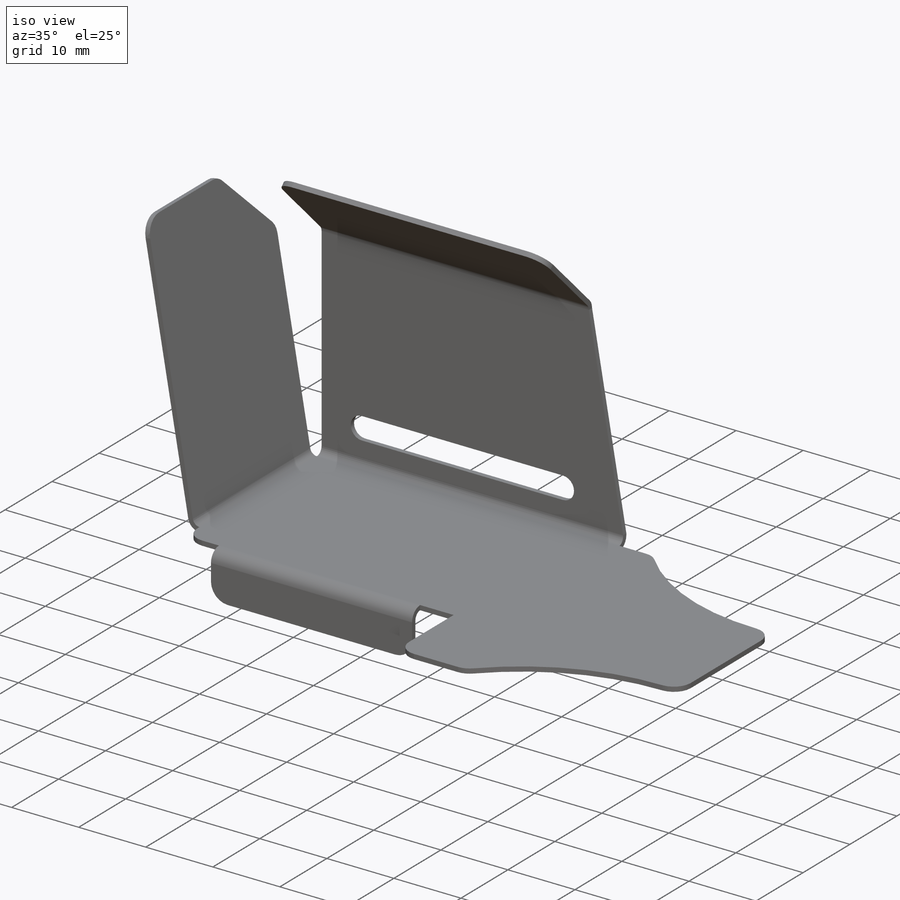
[diagram: iso view]
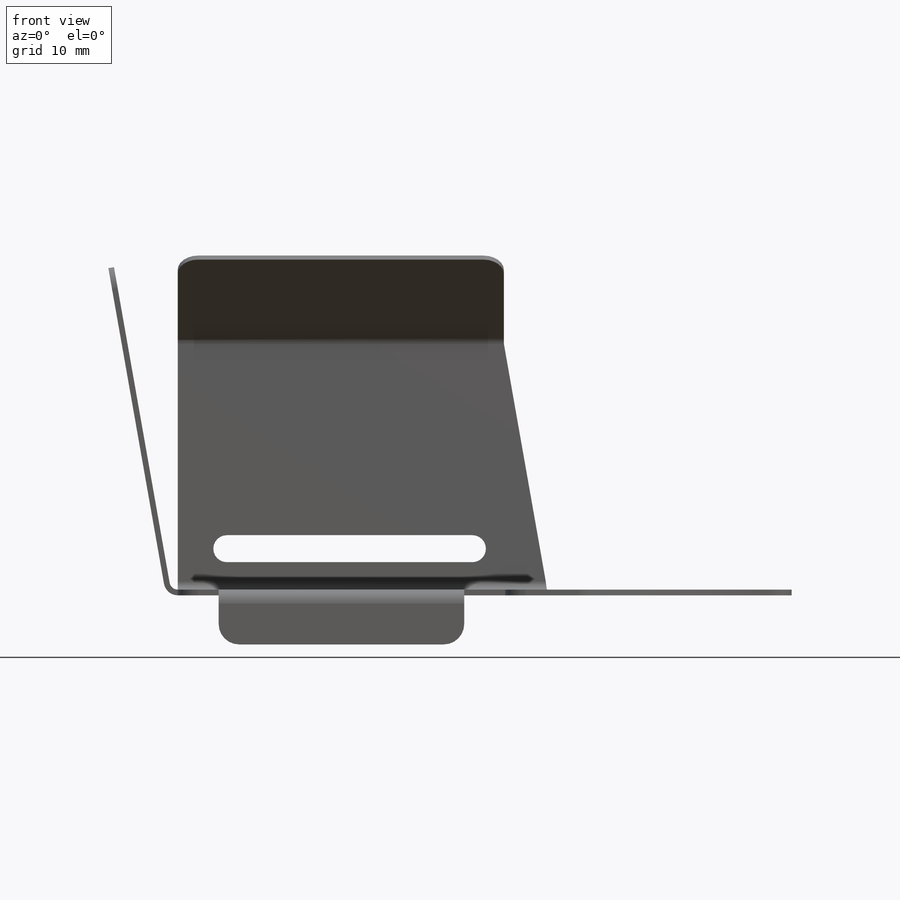
[diagram: front view]
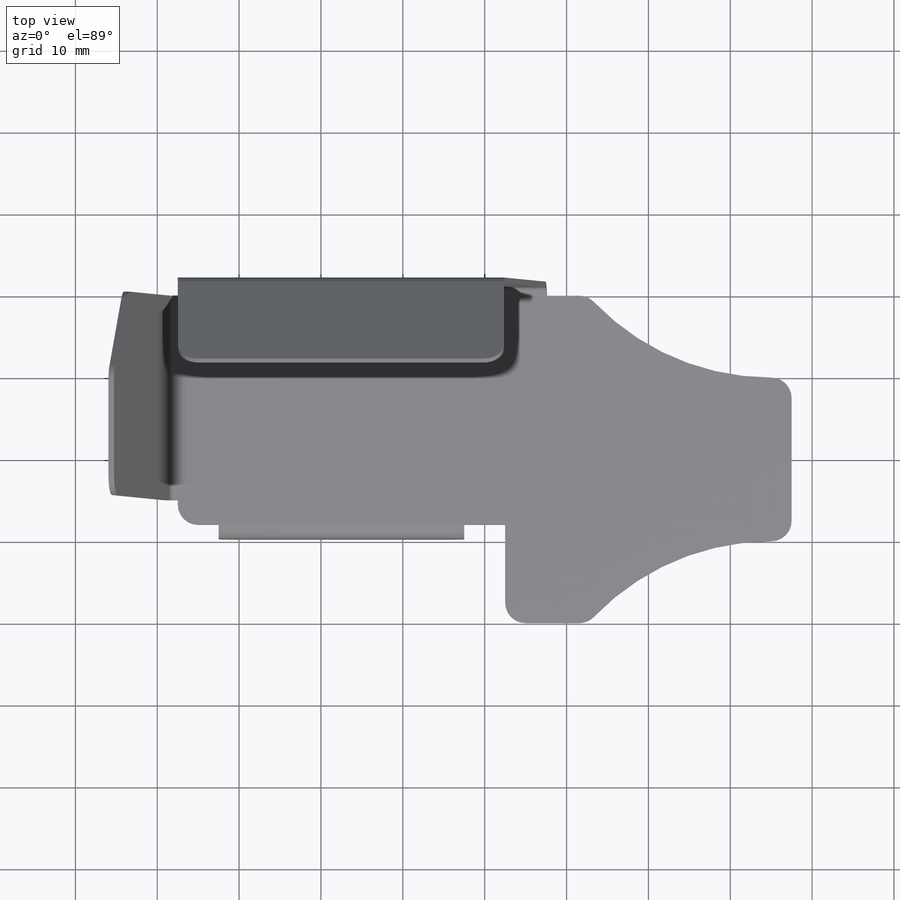
[diagram: top view]
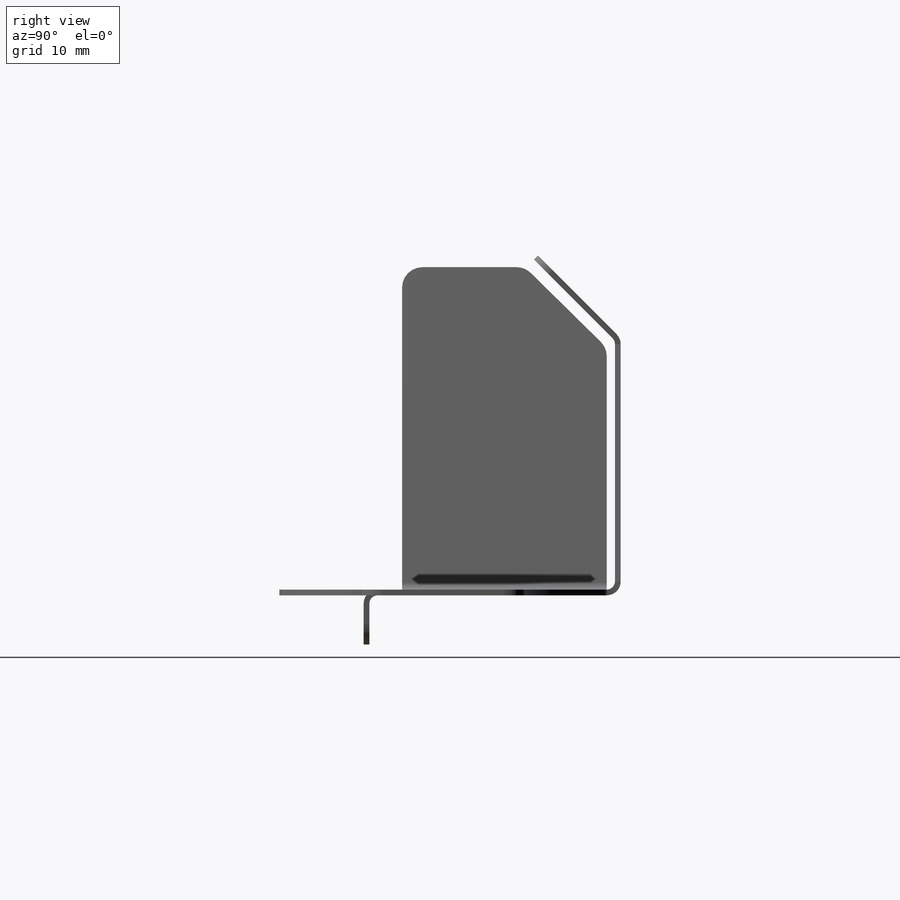
[diagram: right view]
SOLIDWORKS PART (.sldprt)
format: sldprt  version: not decoded by parser v0  size: 387,584 bytes
history: native  units: mm
features: sketch x10, cut_extrude x3, sheet_metal_op x2, material x1 + 4 further entries (+11 scaffold rows collapsed; 1 parser-record rows omitted)
feature tree (32):
  scaffold x11  (default folders/planes/origin — collapsed)
  material  "6061 Alloy"
  sketch  "Sketch1"  dims[D1=40.0mm D2=75.0mm]
  sheet_metal_op  "Sheet-Metal1"
  sheet_metal_op  "Base-Flange1"
  sketch  "Sketch4"  dims[D1=40.0mm D2=20.0mm D3=2.5mm]
  cut_extrude  "Cut-Extrude1"  [1 undecoded]
  sketch  "Sketch12"  dims[c1.D1=30.0mm c1.D2=~40.697051mm c2.D2=10.0deg c3.D2=~40.617064mm c4.D2=10.0deg c4.D1=30.0mm c4.D3=~30.859141mm c5.D3=90.0deg c5.D4=5.0mm c5.D1=1.0mm c6.D4=90.0deg c6.D5=2.0 c6.D8=0.35mm c6.D9=0.35mm c6.D1=1.0mm c6.D2=500.0mm c6.D3=0.0mm c6.D6=10.0mm c6.D7=30.0mm]
  sketch  "Sketch15"  dims[c1.D1=40.0mm c1.D2=~7.483666mm c2.D2=45.0deg c2.D3=30.0mm c2.D4=15.0mm c2.D1=1.0mm c3.D4=80.0deg c3.D5=3.0 c3.D8=0.35mm c3.D9=0.35mm c3.D1=1.0mm c3.D2=500.0mm c3.D3=0.0mm c3.D6=10.0mm c3.D7=40.0mm]
  sketch  "Sketch18"  dims[c1.D1=14.0mm c1.D2=14.0mm c2.D2=90.0deg c2.D1=1.0mm c2.D4=45.0deg c2.D5=4.0 c2.D8=0.35mm c2.D9=0.35mm c3.D1=1.0mm c3.D2=500.0mm c3.D3=0.0mm c3.D6=10.0mm c3.D7=14.0mm]
  sketch  "Sketch19"  dims[c1.D1=12.0mm c1.D2=20.0mm c1.D3=12.5mm c2.D2=40.0mm]
  cut_extrude  "Cut-Extrude2"  [1 undecoded]
  sketch  "Sketch23"  dims[D1=3.3mm D2=30.0mm D3=6.0mm D4=5.0mm]
  cut_extrude  "Cut-Extrude3"  [1 undecoded]
  sketch  "Sketch26"  dims[c1.D1=30.0mm c2.D1=1.0mm c2.D4=90.0deg c2.D5=5.0 c2.D8=0.35mm c2.D9=0.35mm c3.D1=1.0mm c3.D2=500.0mm c3.D3=0.0mm c3.D6=10.0mm c3.D7=6.0mm c4.D1=2.5mm c4.D0=2.5mm c5.D0=2.5mm c5.D7=5.0mm]
  "Flat-Pattern1"
  sketch  "Bend-Lines1"
  sketch  "Bounding-Box1"
  "Flatten-<EdgeBend3>1"
  "Flatten-<EdgeBend4>1"
  "Flatten-<EdgeBend5>1"
  parser-record x1  (decoder bookkeeping rows leaked as tree rows — omitted from the tree; the rows remain in map.json)
decode coverage: 8 of 15 modeling features carry decoded parameters; 4 rows unclassified (native names shown)
note: ~ marks probable driven/reference dimensions
note: 3 parameter values undecoded
summary: no parameter record found for 3 features
note: suppression state not decoded; provenance and decode notes live in map.json
